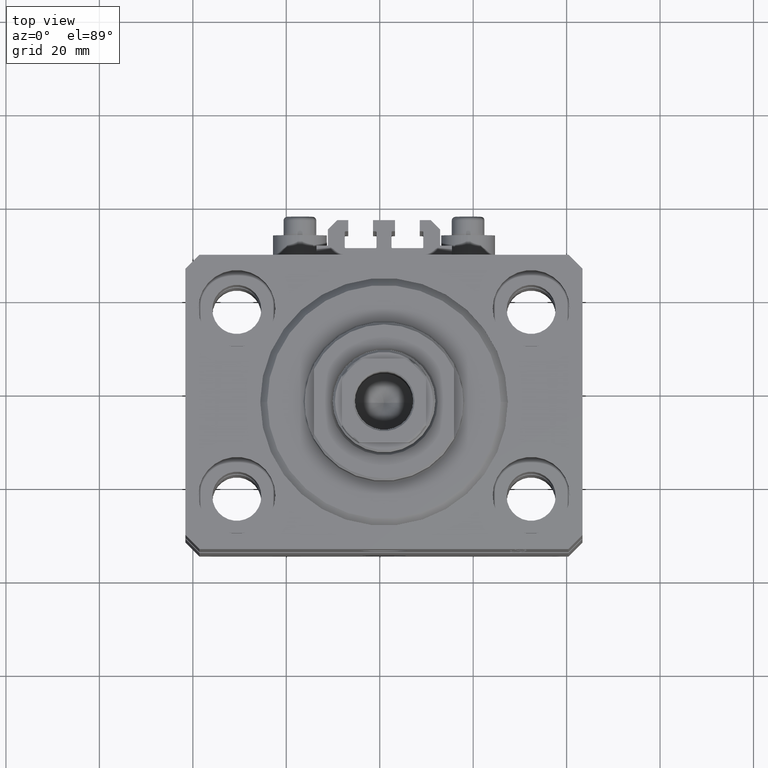
[diagram: clean part render]
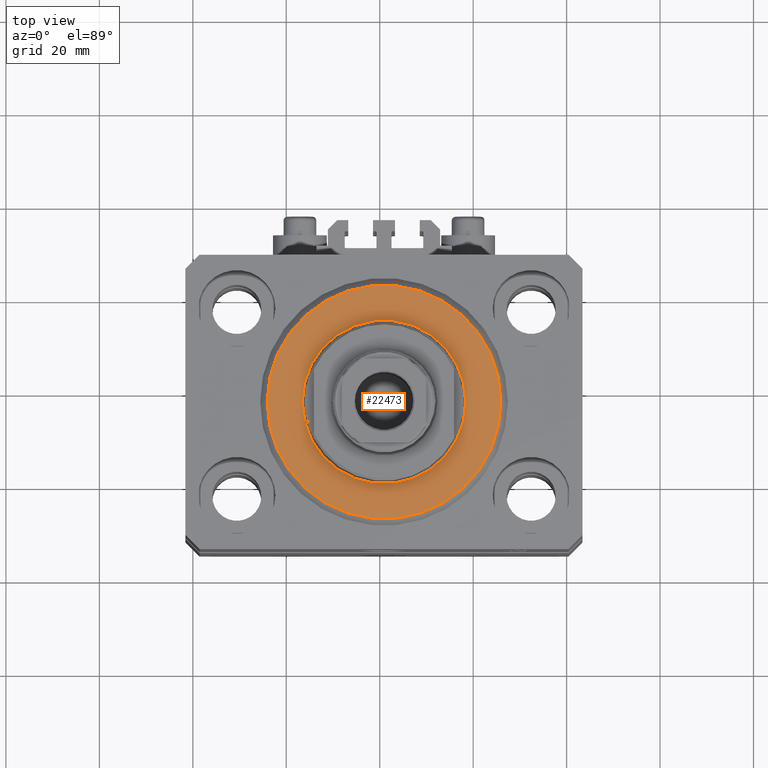
[diagram: same view with one face highlighted and labeled with its STEP entity id]
A machine part, top view. The second image highlights one B-rep face of the part: STEP entity #22473.
In plain terms, the highlighted planar face has unit normal (0, 0, -1).
Its self-contained STEP definition (entity closure, byte-faithful):
#1229 = EDGE_LOOP ( 'NONE', ( #25010, #10382 ) ) ;
#1648 = AXIS2_PLACEMENT_3D ( 'NONE', #15525, #30356, #36673 ) ;
#2602 = CARTESIAN_POINT ( 'NONE',  ( 24.99999999999998224, 0.000000000000000000, 0.000000000000000000 ) ) ;
#3751 = EDGE_CURVE ( 'NONE', #34990, #11706, #31518, .T. ) ;
#6745 = DIRECTION ( 'NONE',  ( 1.000000000000000000, 0.000000000000000000, 0.000000000000000000 ) ) ;
#7597 = EDGE_CURVE ( 'NONE', #11706, #34990, #43316, .T. ) ;
#8246 = EDGE_LOOP ( 'NONE', ( #8475, #46643 ) ) ;
#8475 = ORIENTED_EDGE ( 'NONE', *, *, #41470, .T. ) ;
#9772 = AXIS2_PLACEMENT_3D ( 'NONE', #13984, #25163, #24690 ) ;
#10382 = ORIENTED_EDGE ( 'NONE', *, *, #7597, .T. ) ;
#10418 = DIRECTION ( 'NONE',  ( 1.000000000000000000, 0.000000000000000000, -0.000000000000000000 ) ) ;
#11706 = VERTEX_POINT ( 'NONE', #21151 ) ;
#13203 = VERTEX_POINT ( 'NONE', #2602 ) ;
#13299 = CARTESIAN_POINT ( 'NONE',  ( 0.000000000000000000, 0.000000000000000000, 0.000000000000000000 ) ) ;
#13984 = CARTESIAN_POINT ( 'NONE',  ( 0.000000000000000000, 0.000000000000000000, 0.000000000000000000 ) ) ;
#15525 = CARTESIAN_POINT ( 'NONE',  ( 0.000000000000000000, 0.000000000000000000, 0.000000000000000000 ) ) ;
#16408 = CIRCLE ( 'NONE', #1648, 24.99999999999998224 ) ;
#20636 = CARTESIAN_POINT ( 'NONE',  ( 17.50000000000000000, 0.000000000000000000, 2.168404344971008868E-16 ) ) ;
#20876 = CIRCLE ( 'NONE', #28655, 24.99999999999998224 ) ;
#21137 = PLANE ( 'NONE',  #24646 ) ;
#21151 = CARTESIAN_POINT ( 'NONE',  ( -17.50000000000000000, 2.143131898507868643E-15, 2.168404344971008868E-16 ) ) ;
#22473 = ADVANCED_FACE ( 'NONE', ( #39607, #43265 ), #21137, .F. ) ;
#24531 = CARTESIAN_POINT ( 'NONE',  ( 0.000000000000000000, 0.000000000000000000, 0.000000000000000000 ) ) ;
#24646 = AXIS2_PLACEMENT_3D ( 'NONE', #43970, #25254, #10418 ) ;
#24690 = DIRECTION ( 'NONE',  ( 1.000000000000000000, 0.000000000000000000, 0.000000000000000000 ) ) ;
#25010 = ORIENTED_EDGE ( 'NONE', *, *, #3751, .T. ) ;
#25163 = DIRECTION ( 'NONE',  ( 0.000000000000000000, 0.000000000000000000, 1.000000000000000000 ) ) ;
#25254 = DIRECTION ( 'NONE',  ( 0.000000000000000000, 0.000000000000000000, 1.000000000000000000 ) ) ;
#28655 = AXIS2_PLACEMENT_3D ( 'NONE', #24531, #46899, #6745 ) ;
#30356 = DIRECTION ( 'NONE',  ( -0.000000000000000000, -0.000000000000000000, -1.000000000000000000 ) ) ;
#31518 = CIRCLE ( 'NONE', #9772, 17.50000000000000000 ) ;
#31973 = VERTEX_POINT ( 'NONE', #36360 ) ;
#34990 = VERTEX_POINT ( 'NONE', #20636 ) ;
#35409 = DIRECTION ( 'NONE',  ( 0.000000000000000000, 0.000000000000000000, 1.000000000000000000 ) ) ;
#35696 = EDGE_CURVE ( 'NONE', #31973, #13203, #16408, .T. ) ;
#36286 = AXIS2_PLACEMENT_3D ( 'NONE', #13299, #35409, #36770 ) ;
#36360 = CARTESIAN_POINT ( 'NONE',  ( -24.99999999999998224, 3.153465507804433615E-15, 0.000000000000000000 ) ) ;
#36673 = DIRECTION ( 'NONE',  ( 1.000000000000000000, 0.000000000000000000, 0.000000000000000000 ) ) ;
#36770 = DIRECTION ( 'NONE',  ( 1.000000000000000000, 0.000000000000000000, 0.000000000000000000 ) ) ;
#39607 = FACE_BOUND ( 'NONE', #1229, .T. ) ;
#41470 = EDGE_CURVE ( 'NONE', #13203, #31973, #20876, .T. ) ;
#43265 = FACE_OUTER_BOUND ( 'NONE', #8246, .T. ) ;
#43316 = CIRCLE ( 'NONE', #36286, 17.50000000000000000 ) ;
#43970 = CARTESIAN_POINT ( 'NONE',  ( 0.000000000000000000, 0.000000000000000000, 0.000000000000000000 ) ) ;
#46643 = ORIENTED_EDGE ( 'NONE', *, *, #35696, .T. ) ;
#46899 = DIRECTION ( 'NONE',  ( -0.000000000000000000, -0.000000000000000000, -1.000000000000000000 ) ) ;